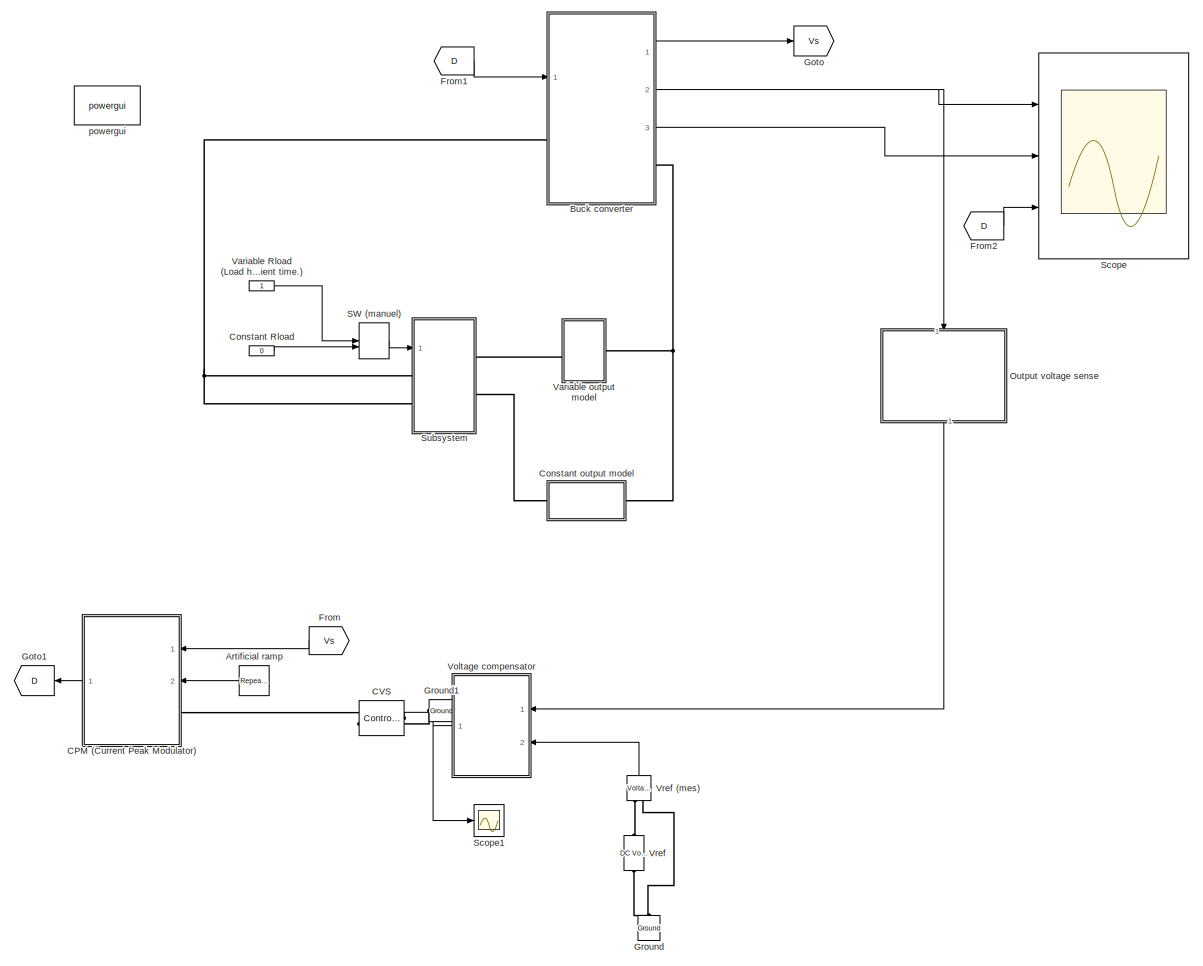
[diagram: root canvas - part 1/1, most of the canvas]
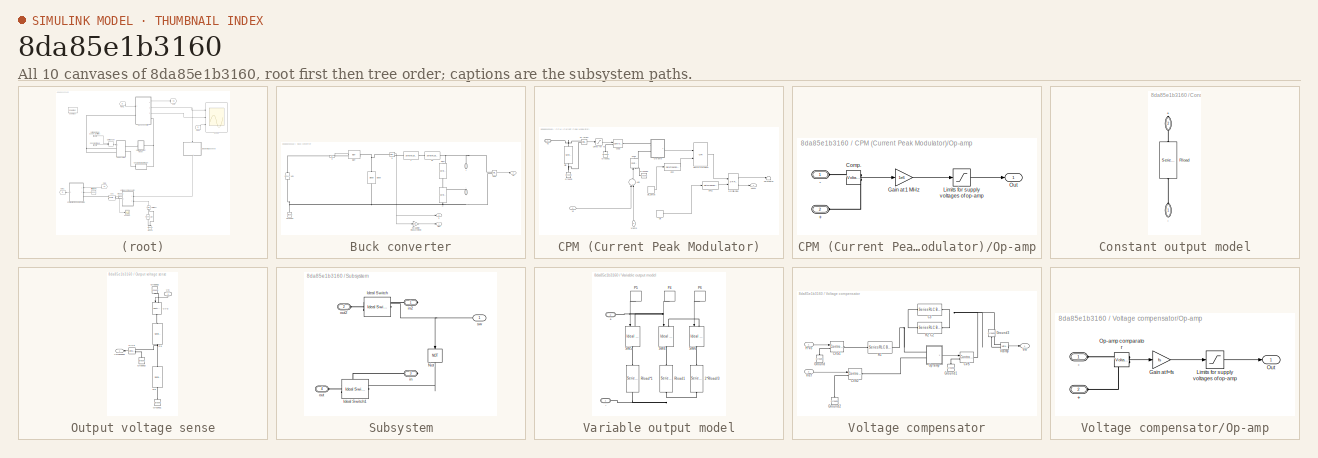
[diagram: thumbnail index - all 10 canvases of the model, root first then tree order]
MODEL slx_8da85e1b3160
KIND model
CONFIG AbsTol = auto
CONFIG FixedStep = auto
CONFIG MaxStep = 1e-7
CONFIG MinStep = auto
CONFIG RelTol = 1e-7
CONFIG SampleTimeConstraint = Unconstrained
CONFIG Solver = ode23tb
CONFIG SolverMode = Auto
CONFIG SolverName = ode23tb
CONFIG StartTime = 0.0
CONFIG StopTime = 0.01
BLOCK [Reference] Artificial ramp  REF=simulink/Sources/Repeating
Sequence
  Ports = [0, 1]
  SourceBlock = simulink/Sources/Repeating\nSequence
  SourceType = Repeating table
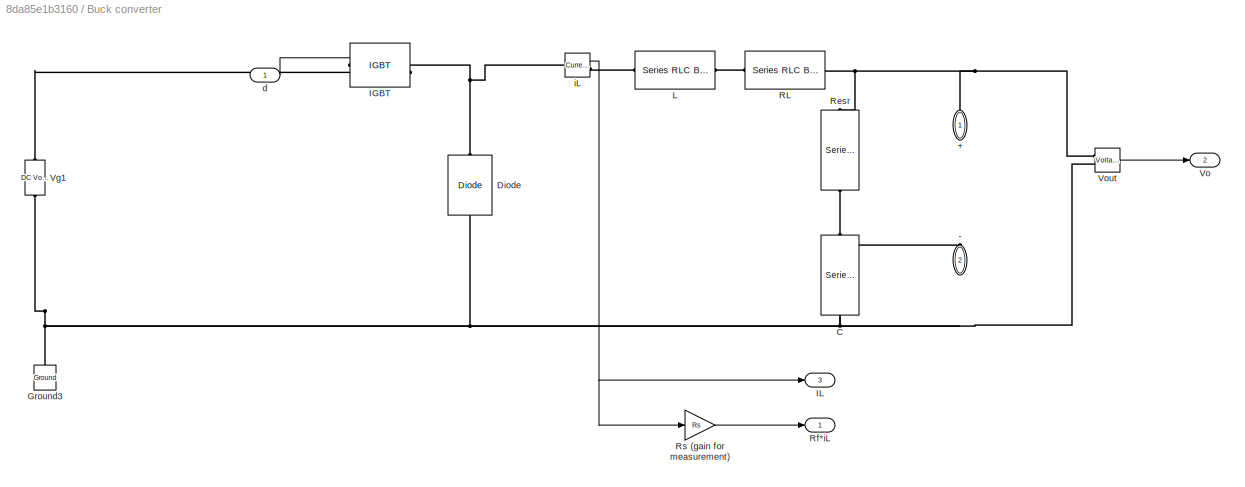
BLOCK [SubSystem] Buck converter
  Ports = [1, 3, 0, 0, 0, 1, 1]
  RequestExecContextInheritance = off
  Variant = off
BLOCK [PMIOPort] Buck converter/+
  Port = 1
  Side = Left
BLOCK [PMIOPort] Buck converter/-
  Port = 2
  Side = Right
BLOCK [Reference] Buck converter/C  REF=powerlib/Elements/Series RLC Branch
  Ports = [0, 0, 0, 0, 0, 1, 1]
  SourceBlock = powerlib/Elements/Series RLC Branch
  SourceType = Series RLC Branch
BLOCK [Reference] Buck converter/Diode  REF=powerlib/Power
Electronics/Diode
  Ports = [0, 0, 0, 0, 0, 1, 1]
  SourceBlock = powerlib/Power\nElectronics/Diode
  SourceType = Diode
BLOCK [Reference] Buck converter/Ground3  REF=powerlib/Elements/Ground
  Ports = [0, 0, 0, 0, 0, 1]
  SourceBlock = powerlib/Elements/Ground
  SourceType = Ground
BLOCK [Reference] Buck converter/IGBT  REF=powerlib/Power
Electronics/IGBT
  Ports = [1, 0, 0, 0, 0, 1, 1]
  SourceBlock = powerlib/Power\nElectronics/IGBT
  SourceType = IGBT
BLOCK [Outport] Buck converter/IL
  IconDisplay = Port number
  Port = 3
BLOCK [Reference] Buck converter/L  REF=powerlib/Elements/Series RLC Branch
  Ports = [0, 0, 0, 0, 0, 1, 1]
  SourceBlock = powerlib/Elements/Series RLC Branch
  SourceType = Series RLC Branch
BLOCK [Reference] Buck converter/RL  REF=powerlib/Elements/Series RLC Branch
  Ports = [0, 0, 0, 0, 0, 1, 1]
  SourceBlock = powerlib/Elements/Series RLC Branch
  SourceType = Series RLC Branch
BLOCK [Reference] Buck converter/Resr  REF=powerlib/Elements/Series RLC Branch
  Ports = [0, 0, 0, 0, 0, 1, 1]
  SourceBlock = powerlib/Elements/Series RLC Branch
  SourceType = Series RLC Branch
BLOCK [Outport] Buck converter/Rf*iL
  IconDisplay = Port number
BLOCK [Gain] Buck converter/Rs (gain for measurement)
  Gain = Rs
  OutDataTypeStr = Inherit: Inherit via internal rule
  ParamDataTypeStr = Inherit: Inherit via internal rule
  SaturateOnIntegerOverflow = off
BLOCK [Reference] Buck converter/Vg1  REF=powerlib/Electrical
Sources/DC Voltage Source
  Ports = [0, 0, 0, 0, 0, 1, 1]
  SourceBlock = powerlib/Electrical\nSources/DC Voltage Source
  SourceType = DC Voltage Source
BLOCK [Outport] Buck converter/Vo
  IconDisplay = Port number
  Port = 2
BLOCK [Reference] Buck converter/Vout  REF=powerlib/Measurements/Voltage Measurement
  Ports = [0, 1, 0, 0, 0, 2]
  SourceBlock = powerlib/Measurements/Voltage Measurement
  SourceType = Voltage Measurement
  UserDataPersistent = on
BLOCK [Inport] Buck converter/d
  IconDisplay = Port number
BLOCK [Reference] Buck converter/iL  REF=powerlib/Measurements/Current Measurement
  Ports = [0, 1, 0, 0, 0, 1, 1]
  SourceBlock = powerlib/Measurements/Current Measurement
  SourceType = Current Measurement
  UserDataPersistent = on
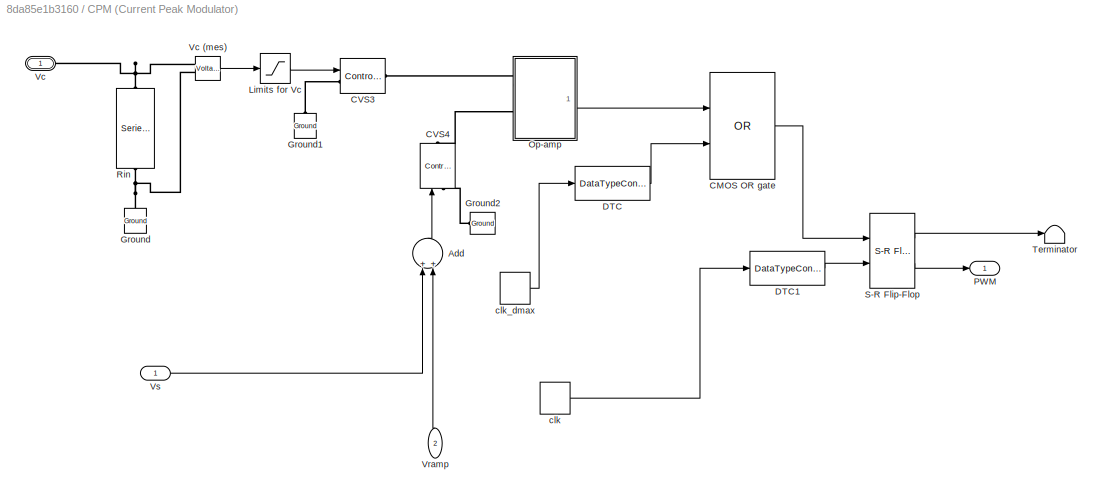
BLOCK [SubSystem] CPM (Current Peak Modulator)
  Ports = [2, 1, 0, 0, 0, 1]
  RequestExecContextInheritance = off
  Variant = off
BLOCK [Sum] CPM (Current Peak Modulator)/Add
  InputSameDT = off
  OutDataTypeStr = Inherit: Inherit via internal rule
  Ports = [2, 1]
  SaturateOnIntegerOverflow = off
BLOCK [Logic] CPM (Current Peak Modulator)/CMOS OR gate
  AllPortsSameDT = off
  Operator = OR
  OutDataTypeStr = boolean
  Ports = [2, 1]
BLOCK [Reference] CPM (Current Peak Modulator)/CVS3  REF=powerlib/Electrical
Sources/Controlled Voltage Source
  Ports = [1, 0, 0, 0, 0, 1, 1]
  SourceBlock = powerlib/Electrical\nSources/Controlled Voltage Source
  SourceType = Controlled Voltage Source
BLOCK [Reference] CPM (Current Peak Modulator)/CVS4  REF=powerlib/Electrical
Sources/Controlled Voltage Source
  Ports = [1, 0, 0, 0, 0, 1, 1]
  SourceBlock = powerlib/Electrical\nSources/Controlled Voltage Source
  SourceType = Controlled Voltage Source
BLOCK [DataTypeConversion] CPM (Current Peak Modulator)/DTC
  LockScale = on
  OutDataTypeStr = boolean
  RndMeth = Floor
BLOCK [DataTypeConversion] CPM (Current Peak Modulator)/DTC1
  LockScale = on
  OutDataTypeStr = boolean
  RndMeth = Floor
BLOCK [Reference] CPM (Current Peak Modulator)/Ground  REF=powerlib/Elements/Ground
  Ports = [0, 0, 0, 0, 0, 1]
  SourceBlock = powerlib/Elements/Ground
  SourceType = Ground
BLOCK [Reference] CPM (Current Peak Modulator)/Ground1  REF=powerlib/Elements/Ground
  Ports = [0, 0, 0, 0, 0, 1]
  SourceBlock = powerlib/Elements/Ground
  SourceType = Ground
BLOCK [Reference] CPM (Current Peak Modulator)/Ground2  REF=powerlib/Elements/Ground
  Ports = [0, 0, 0, 0, 0, 1]
  SourceBlock = powerlib/Elements/Ground
  SourceType = Ground
BLOCK [Saturate] CPM (Current Peak Modulator)/Limits for Vc
  InputPortMap = u0
  LowerLimit = 0
  Ports = [1, 1]
  UpperLimit = Vcmax+Voffset
  ZeroCross = off
BLOCK [SubSystem] CPM (Current Peak Modulator)/Op-amp
  Ports = [0, 1, 0, 0, 0, 2]
  RequestExecContextInheritance = off
  Variant = off
BLOCK [PMIOPort] CPM (Current Peak Modulator)/Op-amp/+
  Port = 2
  Side = Left
BLOCK [PMIOPort] CPM (Current Peak Modulator)/Op-amp/-
  Port = 1
  Side = Left
BLOCK [Reference] CPM (Current Peak Modulator)/Op-amp/Comp.  REF=powerlib/Measurements/Voltage Measurement
  Ports = [0, 1, 0, 0, 0, 2]
  SourceBlock = powerlib/Measurements/Voltage Measurement
  SourceType = Voltage Measurement
  UserDataPersistent = on
BLOCK [Gain] CPM (Current Peak Modulator)/Op-amp/Gain at 1 MHz
  Gain = 1e6
  OutDataTypeStr = Inherit: Inherit via internal rule
  ParamDataTypeStr = Inherit: Inherit via internal rule
  SaturateOnIntegerOverflow = off
BLOCK [Saturate] CPM (Current Peak Modulator)/Op-amp/Limits for supply voltages of op-amp 
  InputPortMap = u0
  LowerLimit = 0
  Ports = [1, 1]
  UpperLimit = Vcc
BLOCK [Outport] CPM (Current Peak Modulator)/Op-amp/Out
  IconDisplay = Port number
BLOCK [Outport] CPM (Current Peak Modulator)/PWM
  IconDisplay = Port number
BLOCK [Reference] CPM (Current Peak Modulator)/Rin  REF=powerlib/Elements/Series RLC Branch
  Ports = [0, 0, 0, 0, 0, 1, 1]
  SourceBlock = powerlib/Elements/Series RLC Branch
  SourceType = Series RLC Branch
BLOCK [Reference] CPM (Current Peak Modulator)/S-R Flip-Flop  REF=simulink_extras/Flip Flops/S-R
Flip-Flop
  Ports = [2, 2]
  SourceBlock = simulink_extras/Flip Flops/S-R\nFlip-Flop
  SourceType = SRFlipFlop
BLOCK [Terminator] CPM (Current Peak Modulator)/Terminator
BLOCK [PMIOPort] CPM (Current Peak Modulator)/Vc
  Port = 1
  Side = Left
BLOCK [Reference] CPM (Current Peak Modulator)/Vc (mes)  REF=powerlib/Measurements/Voltage Measurement
  Ports = [0, 1, 0, 0, 0, 2]
  SourceBlock = powerlib/Measurements/Voltage Measurement
  SourceType = Voltage Measurement
  UserDataPersistent = on
BLOCK [Inport] CPM (Current Peak Modulator)/Vramp
  IconDisplay = Port number
  Port = 2
BLOCK [Inport] CPM (Current Peak Modulator)/Vs
  IconDisplay = Port number
BLOCK [DiscretePulseGenerator] CPM (Current Peak Modulator)/clk
  Amplitude = 5
  Period = 1/fs
  Ports = [0, 1]
  PulseType = Time based
  PulseWidth = (Dmin+1e-10)*100
BLOCK [DiscretePulseGenerator] CPM (Current Peak Modulator)/clk_dmax
  Amplitude = 5
  Period = 1/fs
  PhaseDelay = Dmax/fs
  Ports = [0, 1]
  PulseType = Time based
  PulseWidth = (1-Dmax)*100
BLOCK [Reference] CVS  REF=powerlib/Electrical
Sources/Controlled Voltage Source
  Ports = [1, 0, 0, 0, 0, 1, 1]
  SourceBlock = powerlib/Electrical\nSources/Controlled Voltage Source
  SourceType = Controlled Voltage Source
BLOCK [Constant] Constant Rload
  Value = 0
BLOCK [SubSystem] Constant output model
  Ports = [0, 0, 0, 0, 0, 1, 1]
  RequestExecContextInheritance = off
  ShowPortLabels = FromPortBlockName
  Variant = off
BLOCK [PMIOPort] Constant output model/+
  Port = 2
  Side = Right
BLOCK [PMIOPort] Constant output model/-
  Port = 1
  Side = Left
BLOCK [Reference] Constant output model/Rload  REF=powerlib/Elements/Series RLC Branch
  Ports = [0, 0, 0, 0, 0, 1, 1]
  SourceBlock = powerlib/Elements/Series RLC Branch
  SourceType = Series RLC Branch
BLOCK [From] From
  GotoTag = Vs
BLOCK [From] From1
  GotoTag = D
BLOCK [From] From2
  GotoTag = D
BLOCK [Goto] Goto
  GotoTag = Vs
BLOCK [Goto] Goto1
  GotoTag = D
BLOCK [Reference] Ground  REF=powerlib/Elements/Ground
  Ports = [0, 0, 0, 0, 0, 1]
  SourceBlock = powerlib/Elements/Ground
  SourceType = Ground
BLOCK [Reference] Ground1  REF=powerlib/Elements/Ground
  Ports = [0, 0, 0, 0, 0, 1]
  SourceBlock = powerlib/Elements/Ground
  SourceType = Ground
BLOCK [SubSystem] Output voltage sense
  Ports = [1, 1]
  RequestExecContextInheritance = off
  Variant = off
BLOCK [Reference] Output voltage sense/CVS  REF=powerlib/Electrical
Sources/Controlled Voltage Source
  Ports = [1, 0, 0, 0, 0, 1, 1]
  SourceBlock = powerlib/Electrical\nSources/Controlled Voltage Source
  SourceType = Controlled Voltage Source
BLOCK [Reference] Output voltage sense/Ground1  REF=powerlib/Elements/Ground
  Ports = [0, 0, 0, 0, 0, 1]
  SourceBlock = powerlib/Elements/Ground
  SourceType = Ground
BLOCK [Reference] Output voltage sense/Ground2  REF=powerlib/Elements/Ground
  Ports = [0, 0, 0, 0, 0, 1]
  SourceBlock = powerlib/Elements/Ground
  SourceType = Ground
BLOCK [Reference] Output voltage sense/Ground3  REF=powerlib/Elements/Ground
  Ports = [0, 0, 0, 0, 0, 1]
  SourceBlock = powerlib/Elements/Ground
  SourceType = Ground
BLOCK [Reference] Output voltage sense/H*Vo  REF=powerlib/Measurements/Voltage Measurement
  Ports = [0, 1, 0, 0, 0, 2]
  SourceBlock = powerlib/Measurements/Voltage Measurement
  SourceType = Voltage Measurement
  UserDataPersistent = on
BLOCK [Reference] Output voltage sense/Ra  REF=powerlib/Elements/Series RLC Branch
  Ports = [0, 0, 0, 0, 0, 1, 1]
  SourceBlock = powerlib/Elements/Series RLC Branch
  SourceType = Series RLC Branch
BLOCK [Reference] Output voltage sense/Rb  REF=powerlib/Elements/Series RLC Branch
  Ports = [0, 0, 0, 0, 0, 1, 1]
  SourceBlock = powerlib/Elements/Series RLC Branch
  SourceType = Series RLC Branch
BLOCK [Inport] Output voltage sense/Vo
  IconDisplay = Port number
BLOCK [Outport] Output voltage sense/Vo(sensed)
  IconDisplay = Port number
BLOCK [ManualSwitch] SW (manuel)
BLOCK [Scope] Scope
  NumInputPorts = 3
  Ports = [3]
  ScopeSpecificationString = Simulink.scopes.TimeScopeBlockCfg('CurrentConfiguration', extmgr.ConfigurationSet(extmgr.Configuration('Core','General UI',true),extmgr.Configuration('Core','Source UI',true),extmgr.Configuration('Sources','WiredSimulink',true,'DataLoggingVariableName','ScopeData1'),extmgr.Configuration('Visuals','Time Domain',true,'SerializedDisplays',{struct('MinYLimReal','-0.48654','MaxYLimReal','4.42881','YLab...<+2746ch>
BLOCK [Scope] Scope1
  Ports = [1]
  ScopeSpecificationString = Simulink.scopes.TimeScopeBlockCfg('CurrentConfiguration', extmgr.ConfigurationSet(extmgr.Configuration('Core','General UI',true),extmgr.Configuration('Core','Source UI',true),extmgr.Configuration('Sources','WiredSimulink',true,'DataLoggingVariableName','ScopeData1'),extmgr.Configuration('Visuals','Time Domain',true,'SerializedDisplays',{struct('MinYLimReal','-0.625','MaxYLimReal','5.625','YLabelRe...<+1412ch>
BLOCK [SubSystem] Subsystem
  Ports = [1, 0, 0, 0, 0, 2, 2]
  RequestExecContextInheritance = off
  Variant = off
BLOCK [Reference] Subsystem/Ideal Switch  REF=powerlib/Power
Electronics/Ideal Switch
  Ports = [1, 0, 0, 0, 0, 1, 1]
  SourceBlock = powerlib/Power\nElectronics/Ideal Switch
  SourceType = Ideal Switch
BLOCK [Reference] Subsystem/Ideal Switch1  REF=powerlib/Power
Electronics/Ideal Switch
  Ports = [1, 0, 0, 0, 0, 1, 1]
  SourceBlock = powerlib/Power\nElectronics/Ideal Switch
  SourceType = Ideal Switch
BLOCK [Logic] Subsystem/Not
  AllPortsSameDT = off
  Operator = NOT
  OutDataTypeStr = boolean
  Ports = [1, 1]
BLOCK [PMIOPort] Subsystem/in
  Port = 3
  Side = Right
BLOCK [PMIOPort] Subsystem/in2
  Port = 1
  Side = Right
BLOCK [PMIOPort] Subsystem/out
  Port = 4
  Side = Left
BLOCK [PMIOPort] Subsystem/out2
  Port = 2
  Side = Left
BLOCK [Inport] Subsystem/sw
  IconDisplay = Port number
BLOCK [Constant] Variable Rload (Load halves at first and then increased to 1.5 times the rated value during transient time.)
BLOCK [SubSystem] Variable output model
  Ports = [0, 0, 0, 0, 0, 1, 1]
  RequestExecContextInheritance = off
  Variant = off
BLOCK [PMIOPort] Variable output model/+
  Port = 2
  Side = Left
BLOCK [PMIOPort] Variable output model/-
  Port = 1
  Side = Right
BLOCK [Reference] Variable output model/2*Rload//3  REF=powerlib/Elements/Series RLC Branch
  Ports = [0, 0, 0, 0, 0, 1, 1]
  SourceBlock = powerlib/Elements/Series RLC Branch
  SourceType = Series RLC Branch
BLOCK [DiscretePulseGenerator] Variable output model/P4
  Period = 1e-2
  Ports = [0, 1]
  PulseType = Time based
  PulseWidth = 60
BLOCK [DiscretePulseGenerator] Variable output model/P5
  Period = (0.12/0.2)*1e-2
  PhaseDelay = (0.04/0.2)*1e-2
  Ports = [0, 1]
  PulseType = Time based
  PulseWidth = 33
BLOCK [DiscretePulseGenerator] Variable output model/P6
  Period = 1e-2
  PhaseDelay = (0.12/0.2)*1e-2
  Ports = [0, 1]
  PulseType = Time based
  PulseWidth = 20
BLOCK [Reference] Variable output model/Rload*1  REF=powerlib/Elements/Series RLC Branch
  Ports = [0, 0, 0, 0, 0, 1, 1]
  SourceBlock = powerlib/Elements/Series RLC Branch
  SourceType = Series RLC Branch
BLOCK [Reference] Variable output model/Rload1  REF=powerlib/Elements/Series RLC Branch
  Ports = [0, 0, 0, 0, 0, 1, 1]
  SourceBlock = powerlib/Elements/Series RLC Branch
  SourceType = Series RLC Branch
BLOCK [Reference] Variable output model/SW4  REF=powerlib/Power
Electronics/Ideal Switch
  Ports = [1, 0, 0, 0, 0, 1, 1]
  SourceBlock = powerlib/Power\nElectronics/Ideal Switch
  SourceType = Ideal Switch
BLOCK [Reference] Variable output model/SW5  REF=powerlib/Power
Electronics/Ideal Switch
  Ports = [1, 0, 0, 0, 0, 1, 1]
  SourceBlock = powerlib/Power\nElectronics/Ideal Switch
  SourceType = Ideal Switch
BLOCK [Reference] Variable output model/SW6  REF=powerlib/Power
Electronics/Ideal Switch
  Ports = [1, 0, 0, 0, 0, 1, 1]
  SourceBlock = powerlib/Power\nElectronics/Ideal Switch
  SourceType = Ideal Switch
BLOCK [SubSystem] Voltage compensator
  Ports = [2, 1]
  RequestExecContextInheritance = off
  Variant = off
BLOCK [Reference] Voltage compensator/C3  REF=powerlib/Elements/Series RLC Branch
  Ports = [0, 0, 0, 0, 0, 1, 1]
  SourceBlock = powerlib/Elements/Series RLC Branch
  SourceType = Series RLC Branch
BLOCK [Reference] Voltage compensator/CVS  REF=powerlib/Electrical
Sources/Controlled Voltage Source
  Ports = [1, 0, 0, 0, 0, 1, 1]
  SourceBlock = powerlib/Electrical\nSources/Controlled Voltage Source
  SourceType = Controlled Voltage Source
BLOCK [Reference] Voltage compensator/CVS1  REF=powerlib/Electrical
Sources/Controlled Voltage Source
  Ports = [1, 0, 0, 0, 0, 1, 1]
  SourceBlock = powerlib/Electrical\nSources/Controlled Voltage Source
  SourceType = Controlled Voltage Source
BLOCK [Reference] Voltage compensator/CVS2  REF=powerlib/Electrical
Sources/Controlled Voltage Source
  Ports = [1, 0, 0, 0, 0, 1, 1]
  SourceBlock = powerlib/Electrical\nSources/Controlled Voltage Source
  SourceType = Controlled Voltage Source
BLOCK [Reference] Voltage compensator/Ground  REF=powerlib/Elements/Ground
  Ports = [0, 0, 0, 0, 0, 1]
  SourceBlock = powerlib/Elements/Ground
  SourceType = Ground
BLOCK [Reference] Voltage compensator/Ground1  REF=powerlib/Elements/Ground
  Ports = [0, 0, 0, 0, 0, 1]
  SourceBlock = powerlib/Elements/Ground
  SourceType = Ground
BLOCK [Reference] Voltage compensator/Ground2  REF=powerlib/Elements/Ground
  Ports = [0, 0, 0, 0, 0, 1]
  SourceBlock = powerlib/Elements/Ground
  SourceType = Ground
BLOCK [Reference] Voltage compensator/Ground3  REF=powerlib/Elements/Ground
  Ports = [0, 0, 0, 0, 0, 1]
  SourceBlock = powerlib/Elements/Ground
  SourceType = Ground
BLOCK [Inport] Voltage compensator/H*Vo
  IconDisplay = Port number
BLOCK [SubSystem] Voltage compensator/Op-amp
  Ports = [0, 1, 0, 0, 0, 2]
  RequestExecContextInheritance = off
  Variant = off
BLOCK [PMIOPort] Voltage compensator/Op-amp/+
  Port = 2
  Side = Left
BLOCK [PMIOPort] Voltage compensator/Op-amp/-
  Port = 1
  Side = Left
BLOCK [Gain] Voltage compensator/Op-amp/Gain at f=fs
  Gain = fs
  OutDataTypeStr = Inherit: Inherit via internal rule
  ParamDataTypeStr = Inherit: Inherit via internal rule
  SaturateOnIntegerOverflow = off
BLOCK [Saturate] Voltage compensator/Op-amp/Limits for supply voltages of op-amp
  InputPortMap = u0
  LowerLimit = 0
  Ports = [1, 1]
  UpperLimit = Vcc
BLOCK [Reference] Voltage compensator/Op-amp/Op-amp comparator   REF=powerlib/Measurements/Voltage Measurement
  Ports = [0, 1, 0, 0, 0, 2]
  SourceBlock = powerlib/Measurements/Voltage Measurement
  SourceType = Voltage Measurement
  UserDataPersistent = on
BLOCK [Outport] Voltage compensator/Op-amp/Out
  IconDisplay = Port number
BLOCK [Reference] Voltage compensator/R1  REF=powerlib/Elements/Series RLC Branch
  Ports = [0, 0, 0, 0, 0, 1, 1]
  SourceBlock = powerlib/Elements/Series RLC Branch
  SourceType = Series RLC Branch
BLOCK [Reference] Voltage compensator/R2          C2  REF=powerlib/Elements/Series RLC Branch
  Ports = [0, 0, 0, 0, 0, 1, 1]
  SourceBlock = powerlib/Elements/Series RLC Branch
  SourceType = Series RLC Branch
BLOCK [Reference] Voltage compensator/Vcomp  REF=powerlib/Measurements/Voltage Measurement
  Ports = [0, 1, 0, 0, 0, 2]
  SourceBlock = powerlib/Measurements/Voltage Measurement
  SourceType = Voltage Measurement
  UserDataPersistent = on
BLOCK [Outport] Voltage compensator/Vm
  IconDisplay = Port number
BLOCK [Inport] Voltage compensator/Vref
  IconDisplay = Port number
  Port = 2
BLOCK [Reference] Vref  REF=powerlib/Electrical
Sources/DC Voltage Source
  Ports = [0, 0, 0, 0, 0, 1, 1]
  SourceBlock = powerlib/Electrical\nSources/DC Voltage Source
  SourceType = DC Voltage Source
BLOCK [Reference] Vref (mes)  REF=powerlib/Measurements/Voltage Measurement
  Ports = [0, 1, 0, 0, 0, 2]
  SourceBlock = powerlib/Measurements/Voltage Measurement
  SourceType = Voltage Measurement
  UserDataPersistent = on
BLOCK [Reference] powergui  REF=powerlib/powergui
  Ports = []
  Priority = 1
  SourceBlock = powerlib/powergui
  SourceType = PSB option menu block
  UserDataPersistent = on
LINE Artificial ramp:1 -> CPM (Current Peak Modulator):2
LINE Buck converter/Rs (gain for measurement):1 -> Buck converter/Rf*iL:1
LINE Buck converter/Vout:1 -> Buck converter/Vo:1
LINE Buck converter/d:1 -> Buck converter/IGBT:1
NET Buck converter/iL:1 -> Buck converter/IL:1, Buck converter/Rs (gain for measurement):1
LINE Buck converter:1 -> Goto:1
NET Buck converter:2 -> Output voltage sense:1, Scope:1
LINE Buck converter:3 -> Scope:2
LINE CPM (Current Peak Modulator)/Add:1 -> CPM (Current Peak Modulator)/CVS4:1
LINE CPM (Current Peak Modulator)/CMOS OR gate:1 -> CPM (Current Peak Modulator)/S-R Flip-Flop:1
LINE CPM (Current Peak Modulator)/DTC1:1 -> CPM (Current Peak Modulator)/S-R Flip-Flop:2
LINE CPM (Current Peak Modulator)/DTC:1 -> CPM (Current Peak Modulator)/CMOS OR gate:2
LINE CPM (Current Peak Modulator)/Limits for Vc:1 -> CPM (Current Peak Modulator)/CVS3:1
LINE CPM (Current Peak Modulator)/Op-amp/Comp.:1 -> CPM (Current Peak Modulator)/Op-amp/Gain at 1 MHz:1
LINE CPM (Current Peak Modulator)/Op-amp/Gain at 1 MHz:1 -> CPM (Current Peak Modulator)/Op-amp/Limits for supply voltages of op-amp :1
LINE CPM (Current Peak Modulator)/Op-amp/Limits for supply voltages of op-amp :1 -> CPM (Current Peak Modulator)/Op-amp/Out:1
LINE CPM (Current Peak Modulator)/Op-amp:1 -> CPM (Current Peak Modulator)/CMOS OR gate:1
LINE CPM (Current Peak Modulator)/S-R Flip-Flop:1 -> CPM (Current Peak Modulator)/Terminator:1
LINE CPM (Current Peak Modulator)/S-R Flip-Flop:2 -> CPM (Current Peak Modulator)/PWM:1
LINE CPM (Current Peak Modulator)/Vc (mes):1 -> CPM (Current Peak Modulator)/Limits for Vc:1
LINE CPM (Current Peak Modulator)/Vramp:1 -> CPM (Current Peak Modulator)/Add:2
LINE CPM (Current Peak Modulator)/Vs:1 -> CPM (Current Peak Modulator)/Add:1
LINE CPM (Current Peak Modulator)/clk:1 -> CPM (Current Peak Modulator)/DTC1:1
LINE CPM (Current Peak Modulator)/clk_dmax:1 -> CPM (Current Peak Modulator)/DTC:1
LINE CPM (Current Peak Modulator):1 -> Goto1:1
LINE Constant Rload:1 -> SW (manuel):2
LINE From1:1 -> Buck converter:1
LINE From2:1 -> Scope:3
LINE From:1 -> CPM (Current Peak Modulator):1
LINE Output voltage sense/H*Vo:1 -> Output voltage sense/Vo(sensed):1
LINE Output voltage sense/Vo:1 -> Output voltage sense/CVS:1
LINE Output voltage sense:1 -> Voltage compensator:1
LINE SW (manuel):1 -> Subsystem:1
LINE Subsystem/Not:1 -> Subsystem/Ideal Switch1:1
NET Subsystem/sw:1 -> Subsystem/Ideal Switch:1, Subsystem/Not:1
LINE Variable Rload (Load halves at first and then increased to 1.5 times the rated value during transient time.):1 -> SW (manuel):1
LINE Variable output model/P4:1 -> Variable output model/SW4:1
LINE Variable output model/P5:1 -> Variable output model/SW5:1
LINE Variable output model/P6:1 -> Variable output model/SW6:1
LINE Voltage compensator/H*Vo:1 -> Voltage compensator/CVS1:1
LINE Voltage compensator/Op-amp/Gain at f=fs:1 -> Voltage compensator/Op-amp/Limits for supply voltages of op-amp:1
LINE Voltage compensator/Op-amp/Limits for supply voltages of op-amp:1 -> Voltage compensator/Op-amp/Out:1
LINE Voltage compensator/Op-amp/Op-amp comparator :1 -> Voltage compensator/Op-amp/Gain at f=fs:1
LINE Voltage compensator/Op-amp:1 -> Voltage compensator/CVS:1
LINE Voltage compensator/Vcomp:1 -> Voltage compensator/Vm:1
LINE Voltage compensator/Vref:1 -> Voltage compensator/CVS2:1
NET Voltage compensator:1 -> CVS:1, Scope1:1
LINE Vref (mes):1 -> Voltage compensator:2
PNET net1: Buck converter/+:RConn1 -- Buck converter/RL:RConn1 -- Buck converter/Resr:LConn1 -- Buck converter/Vout:LConn1
PNET net2: Buck converter/-:RConn1 -- Buck converter/C:RConn1 -- Buck converter/Diode:LConn1 -- Buck converter/Ground3:LConn1 -- Buck converter/Vg1:LConn1 -- Buck converter/Vout:LConn2
PLINE Buck converter/C:LConn1 -- Buck converter/Resr:RConn1
PNET net3: Buck converter/Diode:RConn1 -- Buck converter/IGBT:RConn1 -- Buck converter/iL:LConn1
PLINE Buck converter/IGBT:LConn1 -- Buck converter/Vg1:RConn1
PLINE Buck converter/L:LConn1 -- Buck converter/iL:RConn1
PLINE Buck converter/L:RConn1 -- Buck converter/RL:LConn1
PNET net4: Buck converter:LConn1 -- Subsystem:LConn1 -- Subsystem:LConn2
PNET net5: Buck converter:RConn1 -- Constant output model:LConn1 -- Variable output model:RConn1
PLINE CPM (Current Peak Modulator)/CVS3:LConn1 -- CPM (Current Peak Modulator)/Ground1:LConn1
PLINE CPM (Current Peak Modulator)/CVS3:RConn1 -- CPM (Current Peak Modulator)/Op-amp:LConn1
PLINE CPM (Current Peak Modulator)/CVS4:LConn1 -- CPM (Current Peak Modulator)/Ground2:LConn1
PLINE CPM (Current Peak Modulator)/CVS4:RConn1 -- CPM (Current Peak Modulator)/Op-amp:LConn2
PNET net6: CPM (Current Peak Modulator)/Ground:LConn1 -- CPM (Current Peak Modulator)/Rin:RConn1 -- CPM (Current Peak Modulator)/Vc (mes):LConn2
PLINE CPM (Current Peak Modulator)/Op-amp/+:RConn1 -- CPM (Current Peak Modulator)/Op-amp/Comp.:LConn1
PLINE CPM (Current Peak Modulator)/Op-amp/-:RConn1 -- CPM (Current Peak Modulator)/Op-amp/Comp.:LConn2
PNET net7: CPM (Current Peak Modulator)/Rin:LConn1 -- CPM (Current Peak Modulator)/Vc (mes):LConn1 -- CPM (Current Peak Modulator)/Vc:RConn1
PLINE CPM (Current Peak Modulator):LConn1 -- CVS:RConn1
PLINE CVS:LConn1 -- Ground1:LConn1
PLINE Constant output model/+:RConn1 -- Constant output model/Rload:LConn1
PLINE Constant output model/-:RConn1 -- Constant output model/Rload:RConn1
PLINE Constant output model:RConn1 -- Subsystem:RConn2
PNET net8: Ground:LConn1 -- Vref (mes):LConn2 -- Vref:LConn1
PLINE Output voltage sense/CVS:LConn1 -- Output voltage sense/Ground2:LConn1
PLINE Output voltage sense/CVS:RConn1 -- Output voltage sense/Ra:LConn1
PLINE Output voltage sense/Ground1:LConn1 -- Output voltage sense/Rb:RConn1
PLINE Output voltage sense/Ground3:LConn1 -- Output voltage sense/H*Vo:LConn2
PNET net9: Output voltage sense/H*Vo:LConn1 -- Output voltage sense/Ra:RConn1 -- Output voltage sense/Rb:LConn1
PLINE Subsystem/Ideal Switch1:LConn1 -- Subsystem/in:RConn1
PLINE Subsystem/Ideal Switch1:RConn1 -- Subsystem/out:RConn1
PLINE Subsystem/Ideal Switch:LConn1 -- Subsystem/in2:RConn1
PLINE Subsystem/Ideal Switch:RConn1 -- Subsystem/out2:RConn1
PLINE Subsystem:RConn1 -- Variable output model:LConn1
PNET net10: Variable output model/+:RConn1 -- Variable output model/SW4:LConn1 -- Variable output model/SW5:LConn1 -- Variable output model/SW6:LConn1
PNET net11: Variable output model/-:RConn1 -- Variable output model/2*Rload//3:RConn1 -- Variable output model/Rload*1:RConn1 -- Variable output model/Rload1:RConn1
PLINE Variable output model/2*Rload//3:LConn1 -- Variable output model/SW6:RConn1
PLINE Variable output model/Rload*1:LConn1 -- Variable output model/SW5:RConn1
PLINE Variable output model/Rload1:LConn1 -- Variable output model/SW4:RConn1
PNET net12: Voltage compensator/C3:LConn1 -- Voltage compensator/Op-amp:LConn1 -- Voltage compensator/R1:RConn1 -- Voltage compensator/R2          C2:LConn1
PNET net13: Voltage compensator/C3:RConn1 -- Voltage compensator/CVS:RConn1 -- Voltage compensator/R2          C2:RConn1 -- Voltage compensator/Vcomp:LConn1
PLINE Voltage compensator/CVS1:LConn1 -- Voltage compensator/Ground:LConn1
PLINE Voltage compensator/CVS1:RConn1 -- Voltage compensator/R1:LConn1
PLINE Voltage compensator/CVS2:LConn1 -- Voltage compensator/Ground2:LConn1
PLINE Voltage compensator/CVS2:RConn1 -- Voltage compensator/Op-amp:LConn2
PLINE Voltage compensator/CVS:LConn1 -- Voltage compensator/Ground1:LConn1
PLINE Voltage compensator/Ground3:LConn1 -- Voltage compensator/Vcomp:LConn2
PLINE Voltage compensator/Op-amp/+:RConn1 -- Voltage compensator/Op-amp/Op-amp comparator :LConn1
PLINE Voltage compensator/Op-amp/-:RConn1 -- Voltage compensator/Op-amp/Op-amp comparator :LConn2
PLINE Vref (mes):LConn1 -- Vref:RConn1
note: NET lines group one-source signal fan-out (src -> all destinations, sorted); 1:1 wires keep LINE; PNET lines group multi-terminal physical nets as a canonical sorted terminal list (undirected conserving connections); 2-terminal nets keep the pairwise PLINE form
